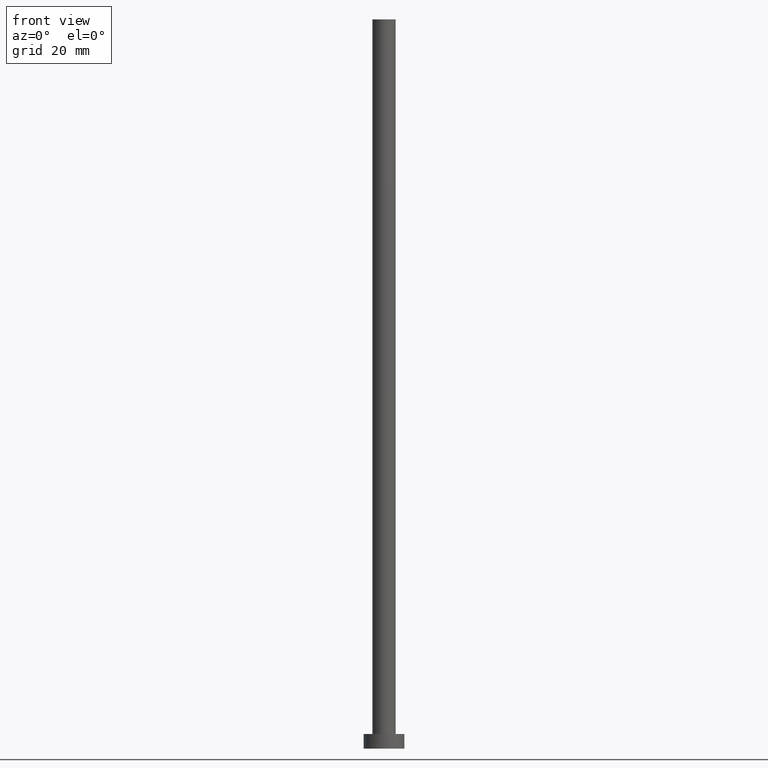
[diagram: clean part render]
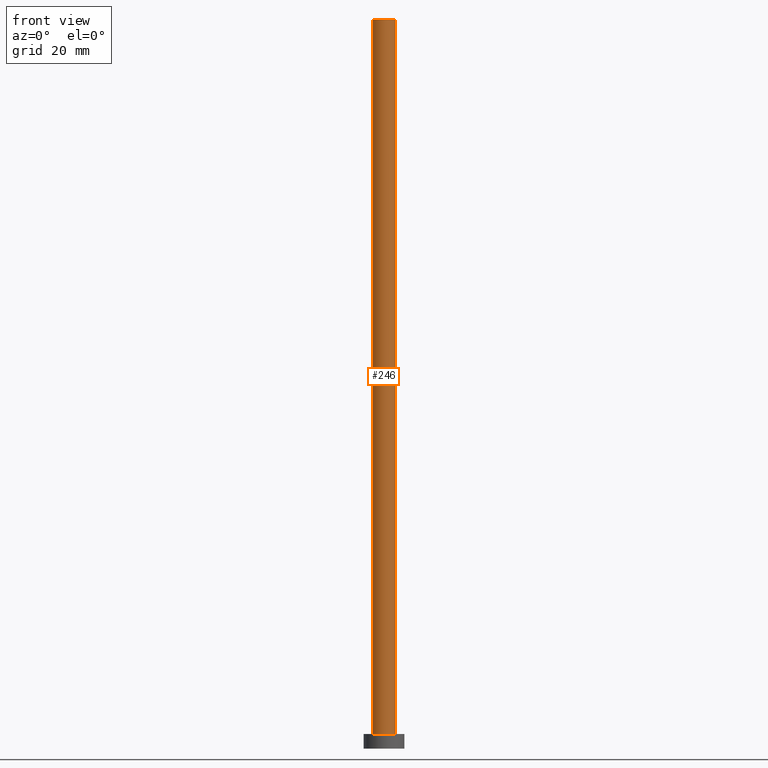
[diagram: same view with one face highlighted and labeled with its STEP entity id]
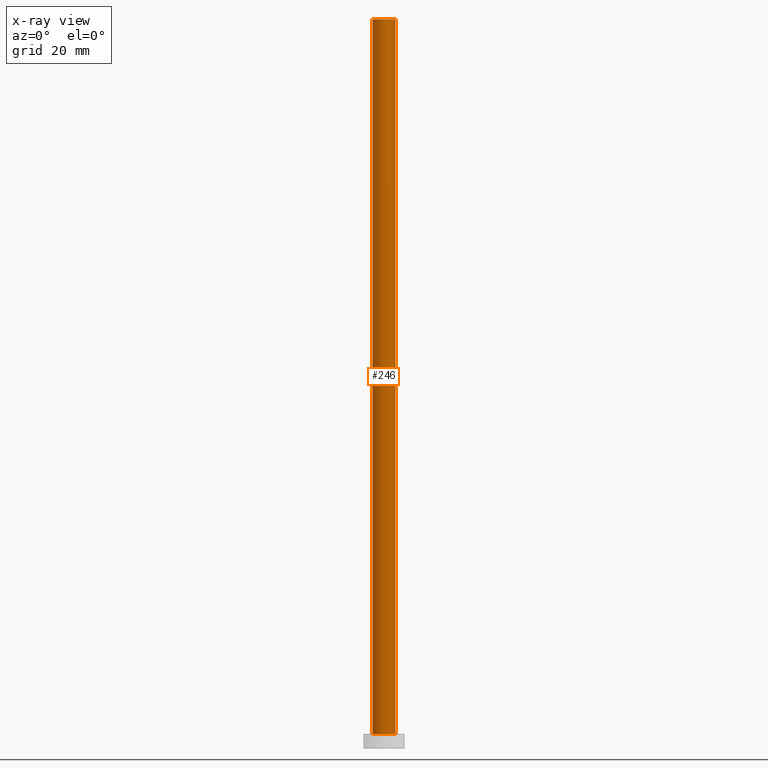
[diagram: x-ray of the same camera — body ghosted, the highlighted face saturated]
A machine part, front view. The second image highlights one B-rep face of the part: STEP entity #246.
The next image is the same camera in x-ray: the body ghosted, the highlighted face saturated — about 0% of this face is hidden behind the body in this view.
In plain terms, the highlighted cylindrical surface (edge-blend (fillet) strip) has radius 4 mm, axis along (-0, -0, -1).
Its self-contained STEP definition (entity closure, byte-faithful):
#1 = ORIENTED_EDGE ( 'NONE', *, *, #143, .T. ) ;
#16 = CARTESIAN_POINT ( 'NONE',  ( 0.000000000000000000, 0.000000000000000000, 250.0000000000000000 ) ) ;
#17 = AXIS2_PLACEMENT_3D ( 'NONE', #95, #210, #38 ) ;
#30 = EDGE_CURVE ( 'NONE', #154, #151, #65, .T. ) ;
#32 = DIRECTION ( 'NONE',  ( -0.000000000000000000, -0.000000000000000000, -1.000000000000000000 ) ) ;
#33 = CARTESIAN_POINT ( 'NONE',  ( 4.000000000000000000, 4.898587196589412829E-16, 250.0000000000000000 ) ) ;
#36 = AXIS2_PLACEMENT_3D ( 'NONE', #213, #174, #116 ) ;
#38 = DIRECTION ( 'NONE',  ( 1.000000000000000000, 0.000000000000000000, 0.000000000000000000 ) ) ;
#55 = CARTESIAN_POINT ( 'NONE',  ( -4.000000000000000000, 0.000000000000000000, 250.0000000000000000 ) ) ;
#65 = LINE ( 'NONE', #137, #220 ) ;
#76 = EDGE_LOOP ( 'NONE', ( #109, #184, #245, #1 ) ) ;
#79 = DIRECTION ( 'NONE',  ( -0.000000000000000000, -0.000000000000000000, -1.000000000000000000 ) ) ;
#88 = CARTESIAN_POINT ( 'NONE',  ( 4.000000000000000000, 4.898587196589412829E-16, 5.000000000000000000 ) ) ;
#94 = DIRECTION ( 'NONE',  ( -1.000000000000000000, 0.000000000000000000, 0.000000000000000000 ) ) ;
#95 = CARTESIAN_POINT ( 'NONE',  ( 0.000000000000000000, 0.000000000000000000, 250.0000000000000000 ) ) ;
#109 = ORIENTED_EDGE ( 'NONE', *, *, #30, .F. ) ;
#116 = DIRECTION ( 'NONE',  ( 1.000000000000000000, 0.000000000000000000, 0.000000000000000000 ) ) ;
#131 = DIRECTION ( 'NONE',  ( -0.000000000000000000, -0.000000000000000000, -1.000000000000000000 ) ) ;
#137 = CARTESIAN_POINT ( 'NONE',  ( 4.000000000000000000, 4.898587196589412829E-16, 250.0000000000000000 ) ) ;
#140 = CIRCLE ( 'NONE', #17, 4.000000000000000000 ) ;
#143 = EDGE_CURVE ( 'NONE', #180, #151, #162, .T. ) ;
#148 = VECTOR ( 'NONE', #131, 1000.000000000000000 ) ;
#151 = VERTEX_POINT ( 'NONE', #88 ) ;
#154 = VERTEX_POINT ( 'NONE', #33 ) ;
#162 = CIRCLE ( 'NONE', #36, 4.000000000000000000 ) ;
#174 = DIRECTION ( 'NONE',  ( 0.000000000000000000, 0.000000000000000000, 1.000000000000000000 ) ) ;
#180 = VERTEX_POINT ( 'NONE', #250 ) ;
#184 = ORIENTED_EDGE ( 'NONE', *, *, #253, .F. ) ;
#188 = LINE ( 'NONE', #55, #148 ) ;
#191 = CYLINDRICAL_SURFACE ( 'NONE', #239, 4.000000000000000000 ) ;
#193 = EDGE_CURVE ( 'NONE', #202, #180, #188, .T. ) ;
#202 = VERTEX_POINT ( 'NONE', #242 ) ;
#210 = DIRECTION ( 'NONE',  ( 0.000000000000000000, 0.000000000000000000, 1.000000000000000000 ) ) ;
#213 = CARTESIAN_POINT ( 'NONE',  ( 0.000000000000000000, 0.000000000000000000, 5.000000000000000000 ) ) ;
#220 = VECTOR ( 'NONE', #79, 1000.000000000000000 ) ;
#228 = FACE_OUTER_BOUND ( 'NONE', #76, .T. ) ;
#239 = AXIS2_PLACEMENT_3D ( 'NONE', #16, #32, #94 ) ;
#242 = CARTESIAN_POINT ( 'NONE',  ( -4.000000000000000000, 0.000000000000000000, 250.0000000000000000 ) ) ;
#245 = ORIENTED_EDGE ( 'NONE', *, *, #193, .T. ) ;
#246 = ADVANCED_FACE ( 'NONE', ( #228 ), #191, .T. ) ;
#250 = CARTESIAN_POINT ( 'NONE',  ( -4.000000000000000000, 0.000000000000000000, 5.000000000000000000 ) ) ;
#253 = EDGE_CURVE ( 'NONE', #202, #154, #140, .T. ) ;